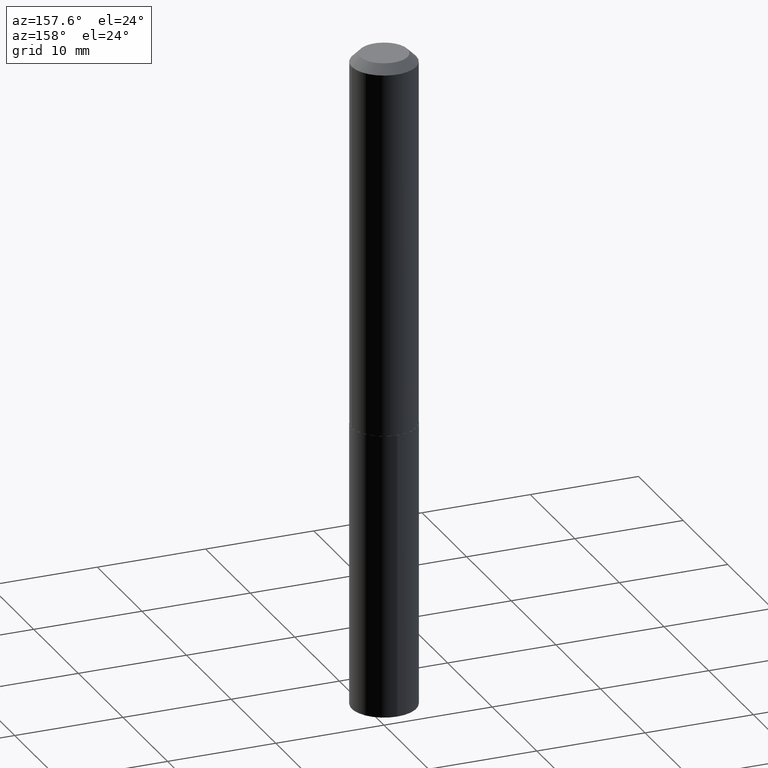
[diagram: clean part render]
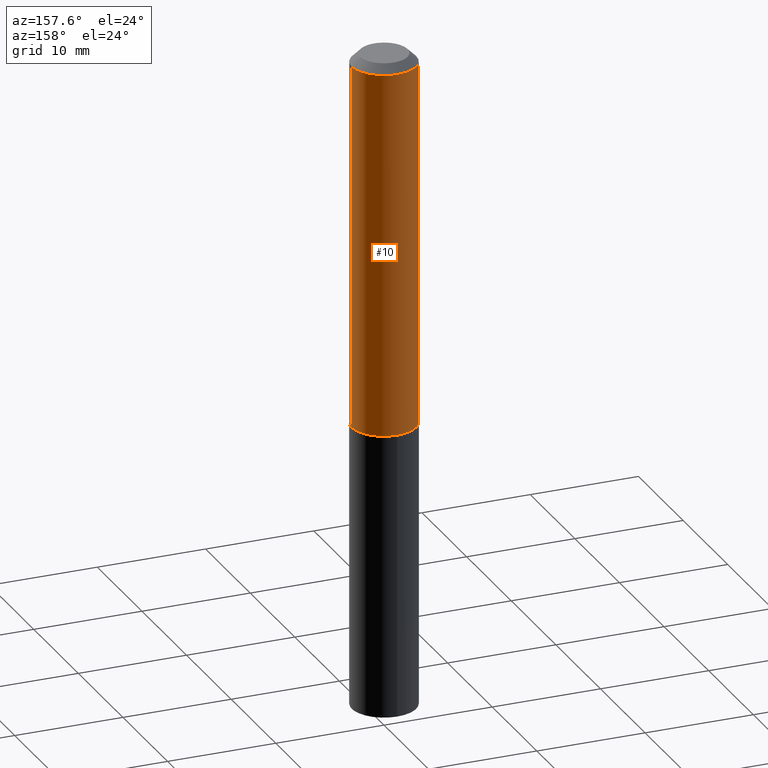
[diagram: same view with one face highlighted and labeled with its STEP entity id]
A machine part, auxiliary view. The second image highlights one B-rep face of the part: STEP entity #10.
In plain terms, the highlighted cylindrical surface (edge-blend (fillet) strip) has radius 2.9769 mm, axis along (-0, 0, 1).
Its self-contained STEP definition (entity closure, byte-faithful):
#3 = VERTEX_POINT ( 'NONE', #149 ) ;
#9 = DIRECTION ( 'NONE',  ( -2.445468806185136597E-29, 3.491481338843145583E-15, 1.000000000000000000 ) ) ;
#10 = ADVANCED_FACE ( 'NONE', ( #66 ), #335, .T. ) ;
#11 = CARTESIAN_POINT ( 'NONE',  ( 0.000000000000000000, 0.000000000000000000, 0.000000000000000000 ) ) ;
#47 = CIRCLE ( 'NONE', #193, 0.1171999999999999986 ) ;
#66 = FACE_OUTER_BOUND ( 'NONE', #317, .T. ) ;
#70 = CARTESIAN_POINT ( 'NONE',  ( -0.1172000000000001929, -3.911817905043111360E-15, -1.358899999999999775 ) ) ;
#77 = DIRECTION ( 'NONE',  ( -2.445468806185136877E-29, 3.491481338843145188E-15, 1.000000000000000000 ) ) ;
#93 = CARTESIAN_POINT ( 'NONE',  ( 3.323147560724981676E-29, -4.744573991353950148E-15, -1.358899999999999775 ) ) ;
#94 = CARTESIAN_POINT ( 'NONE',  ( -0.1171999999999999986, -1.594085305285560836E-15, -0.03125000000000020123 ) ) ;
#99 = DIRECTION ( 'NONE',  ( -2.445468806185136877E-29, 3.491481338843145188E-15, 1.000000000000000000 ) ) ;
#116 = EDGE_CURVE ( 'NONE', #363, #140, #47, .T. ) ;
#122 = DIRECTION ( 'NONE',  ( 1.000000000000000000, -6.982962677686266711E-15, 0.000000000000000000 ) ) ;
#138 = CIRCLE ( 'NONE', #320, 0.1172000000000001929 ) ;
#140 = VERTEX_POINT ( 'NONE', #94 ) ;
#144 = ORIENTED_EDGE ( 'NONE', *, *, #165, .T. ) ;
#149 = CARTESIAN_POINT ( 'NONE',  ( 0.1172000000000001929, -5.562977217178781787E-15, -1.358899999999999775 ) ) ;
#165 = EDGE_CURVE ( 'NONE', #3, #239, #138, .T. ) ;
#193 = AXIS2_PLACEMENT_3D ( 'NONE', #304, #9, #340 ) ;
#200 = AXIS2_PLACEMENT_3D ( 'NONE', #11, #257, #308 ) ;
#215 = ORIENTED_EDGE ( 'NONE', *, *, #249, .F. ) ;
#233 = LINE ( 'NONE', #351, #386 ) ;
#239 = VERTEX_POINT ( 'NONE', #70 ) ;
#249 = EDGE_CURVE ( 'NONE', #3, #363, #233, .T. ) ;
#257 = DIRECTION ( 'NONE',  ( -2.445468806185136597E-29, 3.491481338843145583E-15, 1.000000000000000000 ) ) ;
#268 = ORIENTED_EDGE ( 'NONE', *, *, #116, .F. ) ;
#277 = EDGE_CURVE ( 'NONE', #239, #140, #313, .T. ) ;
#280 = DIRECTION ( 'NONE',  ( -2.445468806185136597E-29, 3.491481338843145583E-15, 1.000000000000000000 ) ) ;
#304 = CARTESIAN_POINT ( 'NONE',  ( 7.642090019328600035E-31, -1.091087918388489897E-16, -0.03125000000000020123 ) ) ;
#308 = DIRECTION ( 'NONE',  ( 1.000000000000000000, -6.982962677686266711E-15, 4.876176775795936353E-29 ) ) ;
#313 = LINE ( 'NONE', #316, #367 ) ;
#314 = CARTESIAN_POINT ( 'NONE',  ( 0.1171999999999999986, -9.275120176636793588E-16, -0.03125000000000020123 ) ) ;
#316 = CARTESIAN_POINT ( 'NONE',  ( -0.1172000000000000819, 8.327560863108379997E-16, -5.764991925778754026E-30 ) ) ;
#317 = EDGE_LOOP ( 'NONE', ( #144, #331, #268, #215 ) ) ;
#320 = AXIS2_PLACEMENT_3D ( 'NONE', #93, #280, #122 ) ;
#331 = ORIENTED_EDGE ( 'NONE', *, *, #277, .T. ) ;
#335 = CYLINDRICAL_SURFACE ( 'NONE', #200, 0.1172000000000000819 ) ;
#340 = DIRECTION ( 'NONE',  ( 1.000000000000000000, -6.982962677686266711E-15, 0.000000000000000000 ) ) ;
#351 = CARTESIAN_POINT ( 'NONE',  ( 0.1172000000000000819, -8.184032258248310470E-16, 5.714879181232841379E-30 ) ) ;
#363 = VERTEX_POINT ( 'NONE', #314 ) ;
#367 = VECTOR ( 'NONE', #99, 39.37007874015748143 ) ;
#386 = VECTOR ( 'NONE', #77, 39.37007874015748143 ) ;